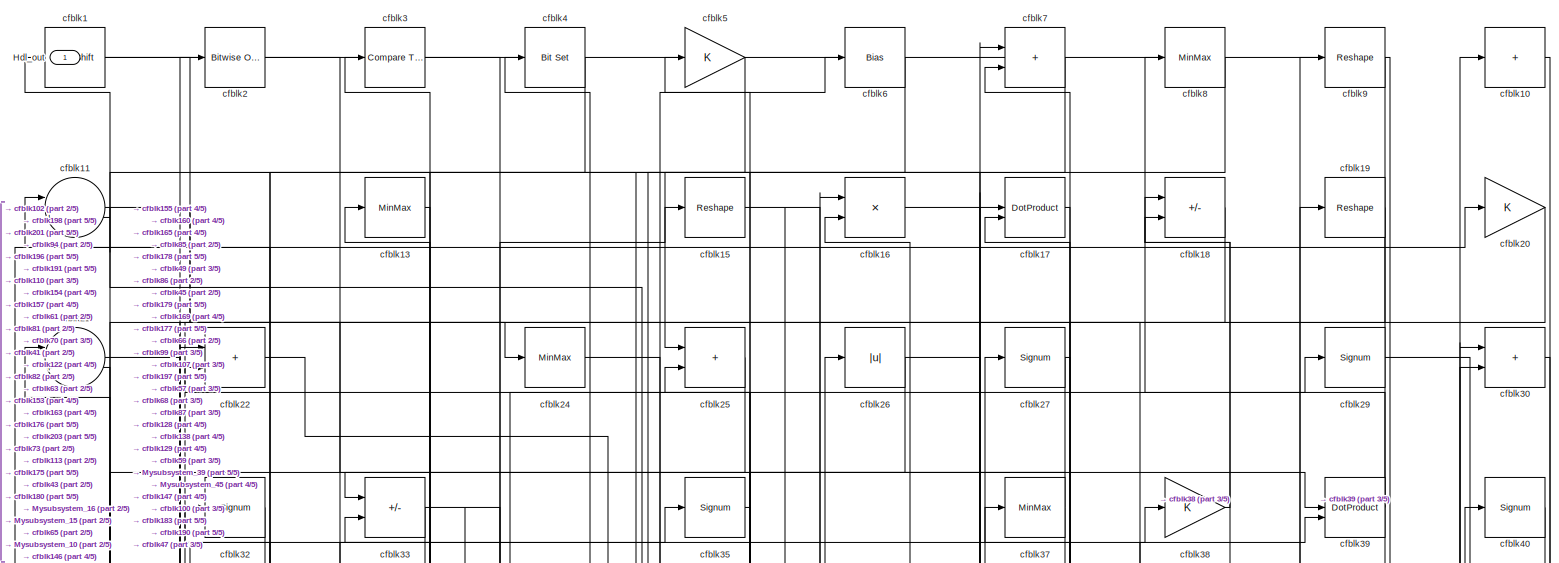
[diagram: root canvas - part 1/5, full width, top band]
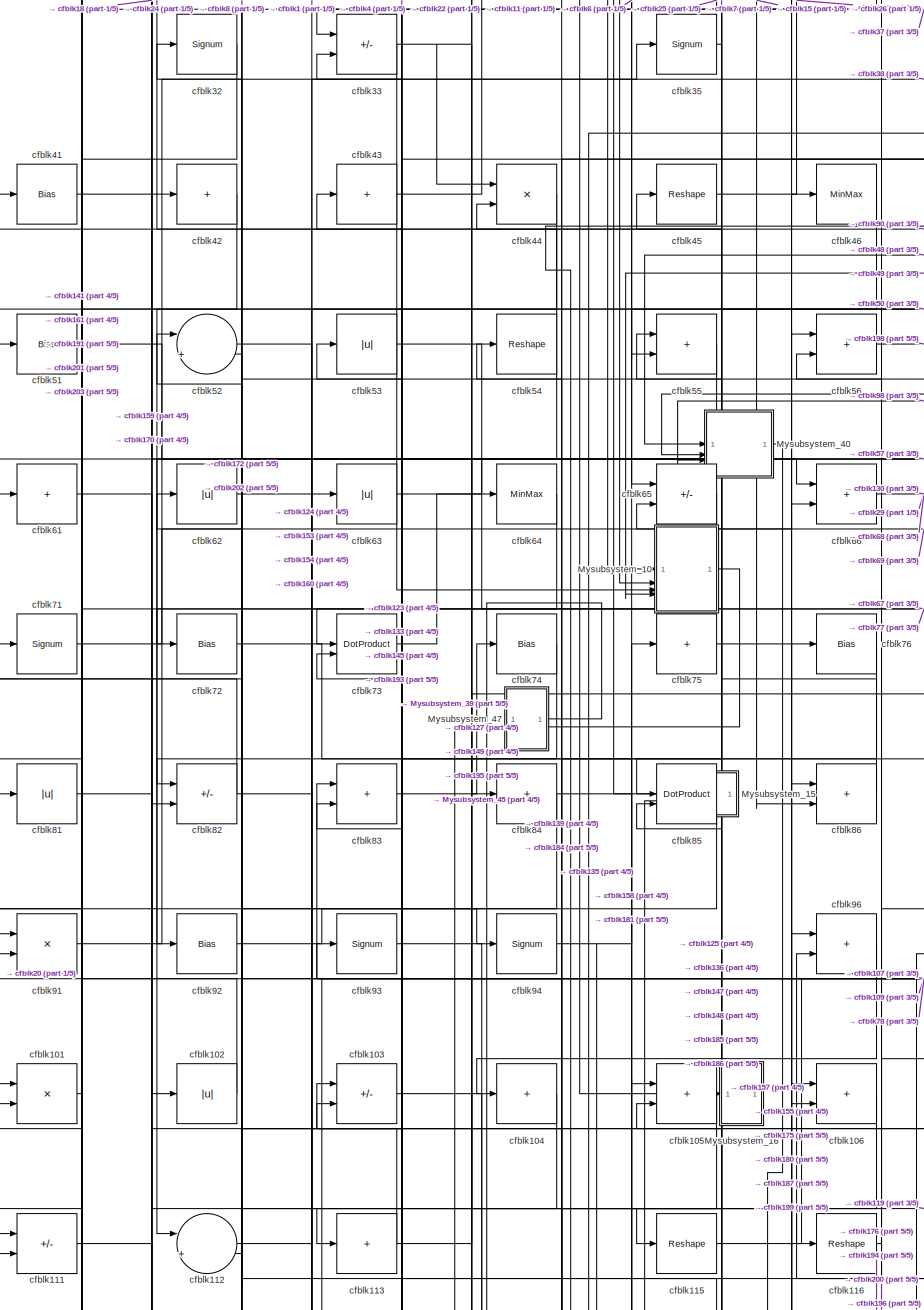
[diagram: root canvas - part 2/5, middle left region]
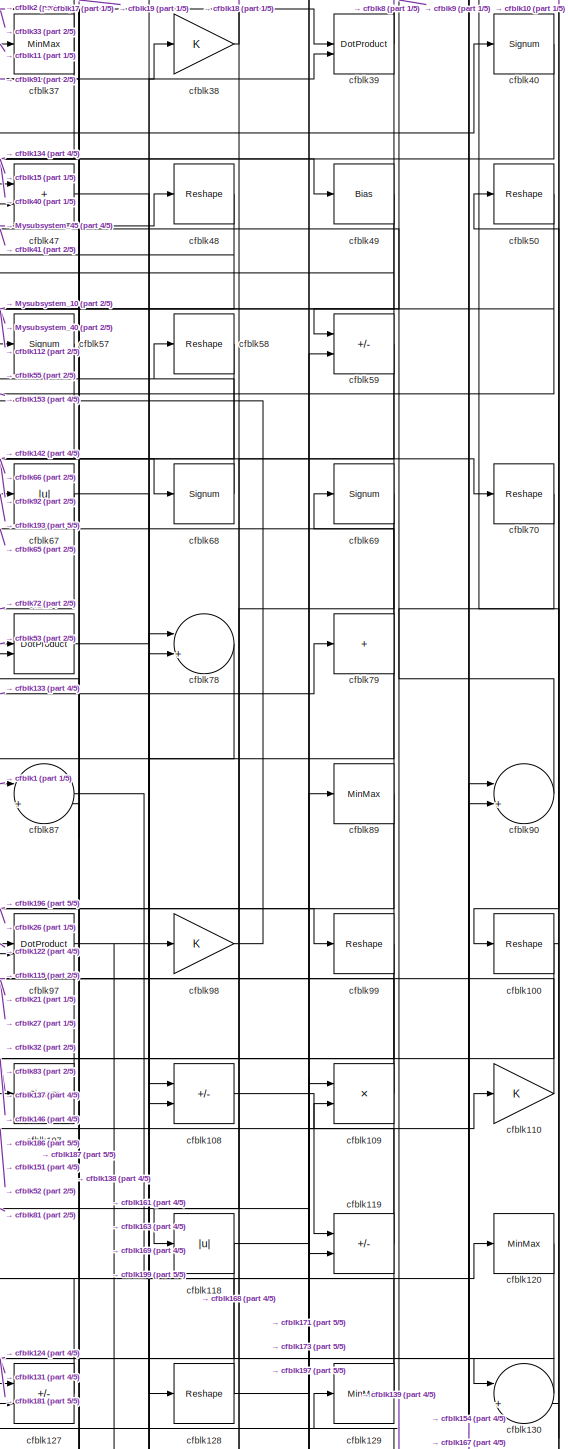
[diagram: root canvas - part 3/5, middle right region]
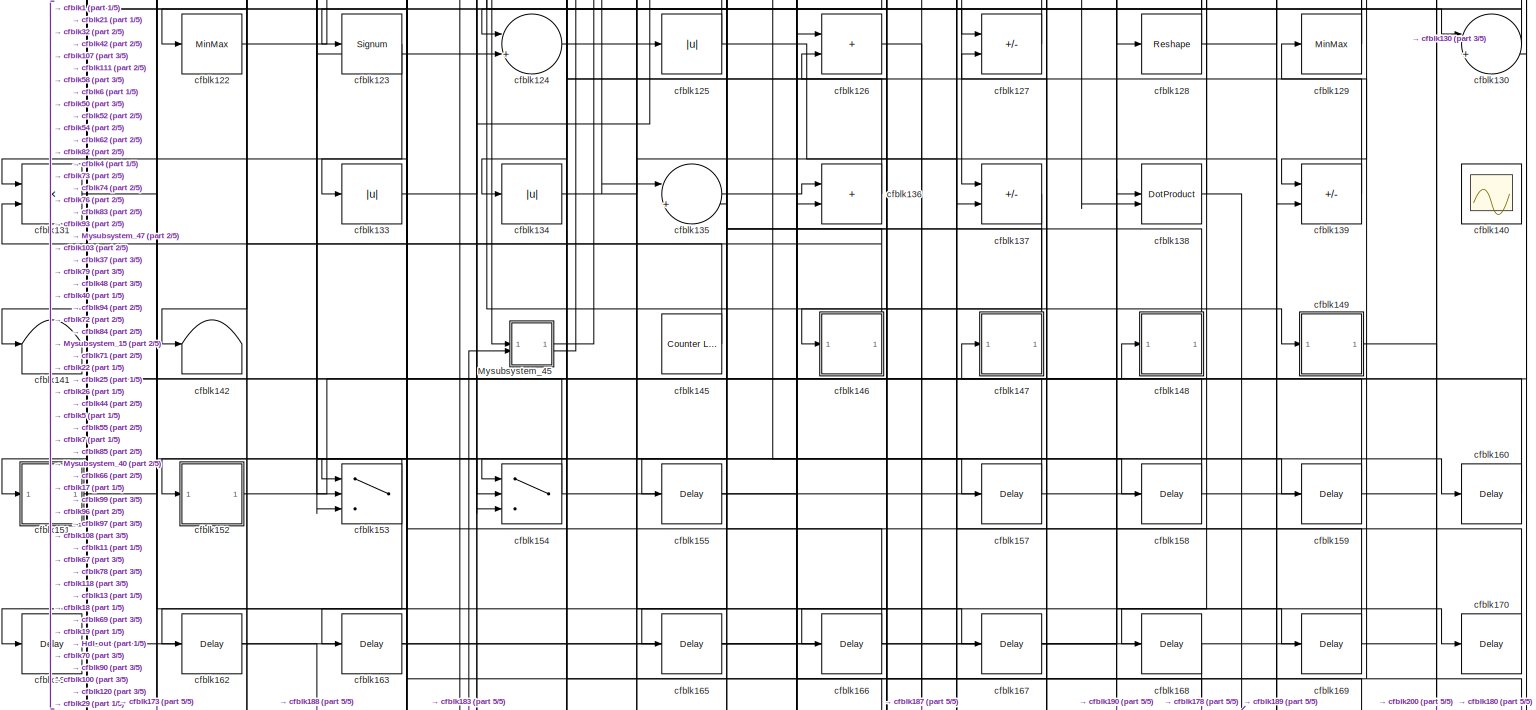
[diagram: root canvas - part 4/5, full width, bottom band]
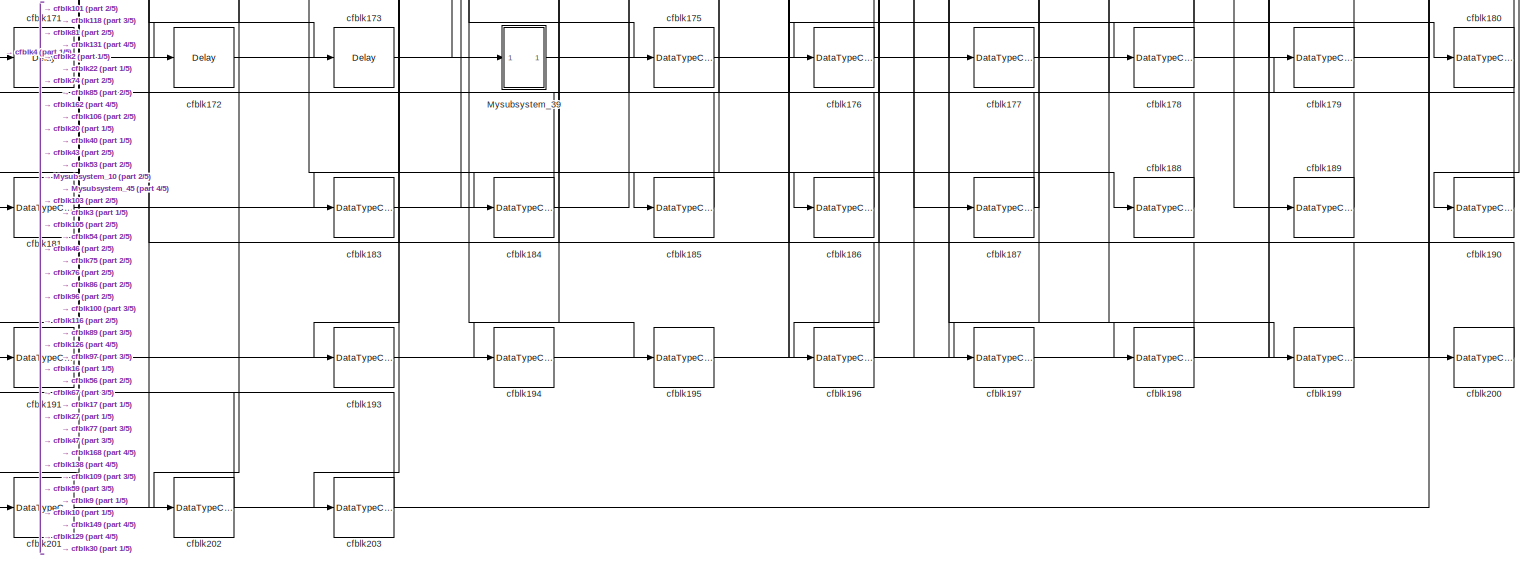
[diagram: root canvas - part 5/5, full width, bottom band]
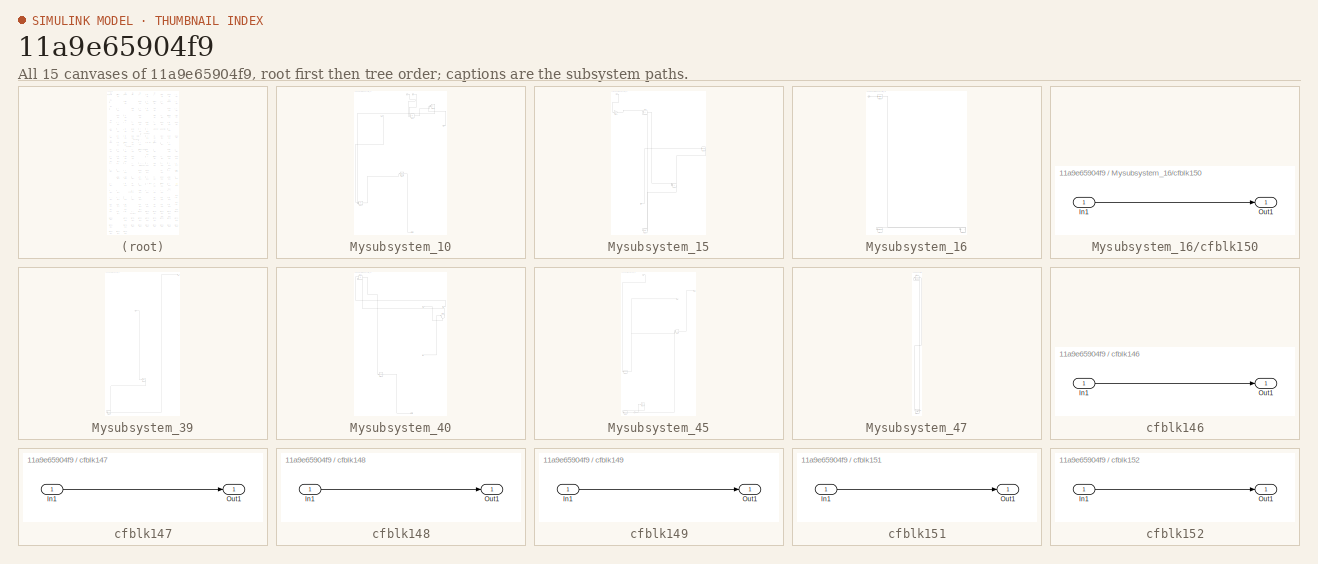
[diagram: thumbnail index - all 15 canvases of the model, root first then tree order]
MODEL slx_11a9e65904f9
KIND model
CONFIG AbsTol = auto
CONFIG EnableMultiTasking = off
CONFIG FixedStep = auto
CONFIG MaxStep = auto
CONFIG MinStep = auto
CONFIG RelTol = 1e-3
CONFIG SampleTimeConstraint = Unconstrained
CONFIG SolverName = VariableStepAuto
CONFIG StartTime = 0.0
CONFIG StopTime = 10.0
BLOCK [Outport] Hdl_out
  OutDataTypeStr = uint8
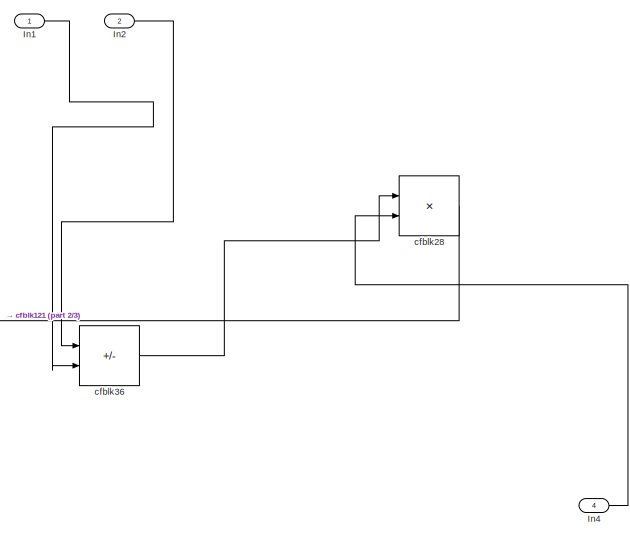
[diagram: Mysubsystem_10 - part 1/3, top right region]
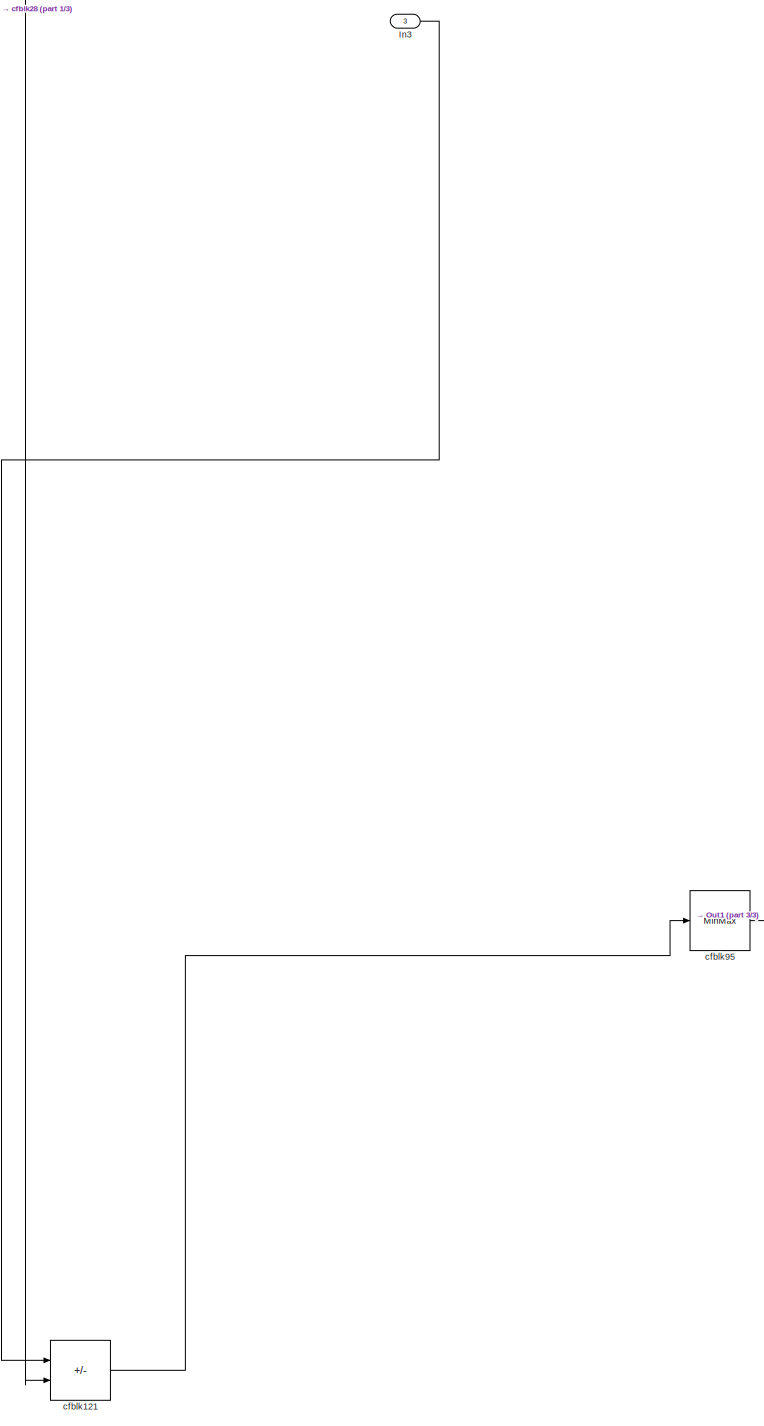
[diagram: Mysubsystem_10 - part 2/3, middle left region]
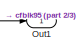
[diagram: Mysubsystem_10 - part 3/3, bottom center region]
BLOCK [SubSystem] Mysubsystem_10
  RTWFcnName = Mysubsystem_10
  RTWFcnNameOpts = User specified
  RTWFileNameOpts = Use function name
  RTWSystemCode = Reusable function
  TreatAsAtomicUnit = on
BLOCK [Inport] Mysubsystem_10/In1
BLOCK [Inport] Mysubsystem_10/In2
  Port = 2
BLOCK [Inport] Mysubsystem_10/In3
  Port = 3
BLOCK [Inport] Mysubsystem_10/In4
  Port = 4
BLOCK [Outport] Mysubsystem_10/Out1
BLOCK [Sum] Mysubsystem_10/cfblk121
  IconShape = rectangular
  Inputs = +-
BLOCK [Product] Mysubsystem_10/cfblk28
  Inputs = */
  RndMeth = Zero
  SaturateOnIntegerOverflow = on
BLOCK [Sum] Mysubsystem_10/cfblk36
  IconShape = rectangular
  Inputs = +-
BLOCK [MinMax] Mysubsystem_10/cfblk95
BLOCK [SubSystem] Mysubsystem_15
  RTWFcnName = Mysubsystem_15
  RTWFcnNameOpts = User specified
  RTWFileNameOpts = Use function name
  RTWSystemCode = Reusable function
  TreatAsAtomicUnit = on
BLOCK [Inport] Mysubsystem_15/In1
BLOCK [Inport] Mysubsystem_15/In2
  Port = 2
BLOCK [Sum] Mysubsystem_15/cfblk117
  IconShape = rectangular
  Inputs = +-
BLOCK [Delay] Mysubsystem_15/cfblk164
  InputPortMap = u0
  SampleTime = 1
BLOCK [Gain] Mysubsystem_15/cfblk31
BLOCK [Sum] Mysubsystem_15/cfblk34
  IconShape = rectangular
  Inputs = +-
BLOCK [Signum] Mysubsystem_15/cfblk80
BLOCK [SubSystem] Mysubsystem_16
  RTWFcnName = Mysubsystem_16
  RTWFcnNameOpts = User specified
  RTWFileNameOpts = Use function name
  RTWSystemCode = Reusable function
  TreatAsAtomicUnit = on
BLOCK [Inport] Mysubsystem_16/In1
BLOCK [ToWorkspace] Mysubsystem_16/cfblk143
  MaxDataPoints = inf
  SampleTime = -1
  SaveFormat = Timeseries
  VariableName = simout
BLOCK [SubSystem] Mysubsystem_16/cfblk150
  LibrarySourceBlock = hdlsllib/Ports &\nSubsystems/Subsystem
BLOCK [Inport] Mysubsystem_16/cfblk150/In1
BLOCK [Outport] Mysubsystem_16/cfblk150/Out1
BLOCK [MinMax] Mysubsystem_16/cfblk23
BLOCK [SubSystem] Mysubsystem_39
  RTWFcnName = Mysubsystem_39
  RTWFcnNameOpts = User specified
  RTWFileNameOpts = Use function name
  RTWSystemCode = Reusable function
  TreatAsAtomicUnit = on
BLOCK [Inport] Mysubsystem_39/In1
BLOCK [Outport] Mysubsystem_39/Out1
BLOCK [Delay] Mysubsystem_39/cfblk156
  InputPortMap = u0
  SampleTime = 1
BLOCK [DataTypeConversion] Mysubsystem_39/cfblk192
  OutDataTypeStr = uint8
  RndMeth = Floor
  SaturateOnIntegerOverflow = off
BLOCK [SubSystem] Mysubsystem_40
  RTWFcnName = Mysubsystem_40
  RTWFcnNameOpts = User specified
  RTWFileNameOpts = Use function name
  RTWSystemCode = Reusable function
  TreatAsAtomicUnit = on
BLOCK [Inport] Mysubsystem_40/In1
BLOCK [Inport] Mysubsystem_40/In2
  Port = 2
BLOCK [Inport] Mysubsystem_40/In3
  Port = 3
BLOCK [Outport] Mysubsystem_40/Out1
BLOCK [Reshape] Mysubsystem_40/cfblk114
BLOCK [Product] Mysubsystem_40/cfblk12
  Inputs = */
  RndMeth = Zero
  SaturateOnIntegerOverflow = on
BLOCK [Sum] Mysubsystem_40/cfblk60
  Inputs = |++
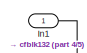
[diagram: Mysubsystem_45 - part 1/5, top left region]
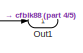
[diagram: Mysubsystem_45 - part 2/5, top right region]
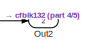
[diagram: Mysubsystem_45 - part 3/5, top right region]
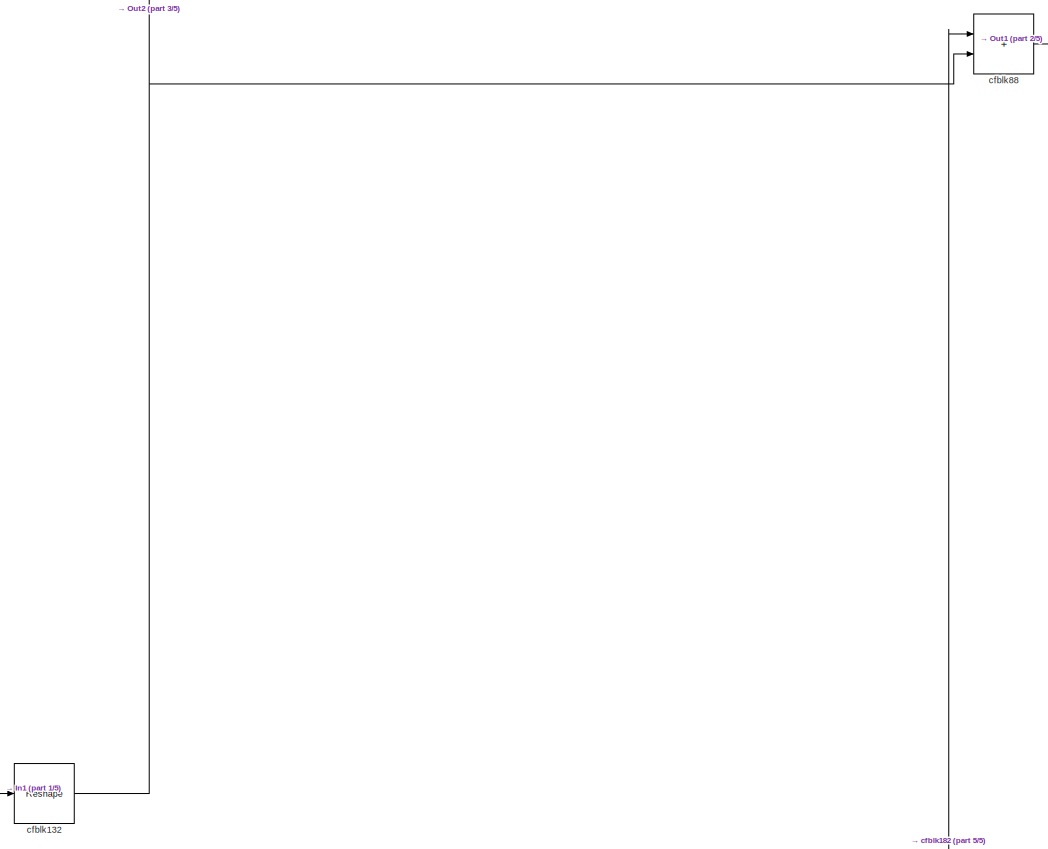
[diagram: Mysubsystem_45 - part 4/5, full width, middle band]
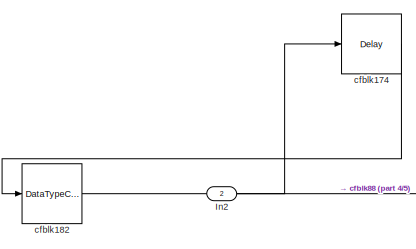
[diagram: Mysubsystem_45 - part 5/5, bottom left region]
BLOCK [SubSystem] Mysubsystem_45
  RTWFcnName = Mysubsystem_45
  RTWFcnNameOpts = User specified
  RTWFileNameOpts = Use function name
  RTWSystemCode = Reusable function
  TreatAsAtomicUnit = on
BLOCK [Inport] Mysubsystem_45/In1
BLOCK [Inport] Mysubsystem_45/In2
  Port = 2
BLOCK [Outport] Mysubsystem_45/Out1
BLOCK [Outport] Mysubsystem_45/Out2
  Port = 2
BLOCK [Reshape] Mysubsystem_45/cfblk132
BLOCK [Delay] Mysubsystem_45/cfblk174
  InputPortMap = u0
  SampleTime = 1
BLOCK [DataTypeConversion] Mysubsystem_45/cfblk182
  OutDataTypeStr = uint8
  RndMeth = Floor
  SaturateOnIntegerOverflow = off
BLOCK [Sum] Mysubsystem_45/cfblk88
  IconShape = rectangular
BLOCK [SubSystem] Mysubsystem_47
  RTWFcnName = Mysubsystem_47
  RTWFcnNameOpts = User specified
  RTWFileNameOpts = Use function name
  RTWSystemCode = Reusable function
  TreatAsAtomicUnit = on
BLOCK [Outport] Mysubsystem_47/Out1
BLOCK [Reshape] Mysubsystem_47/cfblk14
BLOCK [Ground] Mysubsystem_47/cfblk144
BLOCK [ArithShift] cfblk1
  BitShiftNumber = 8
  InputPortMap = u0
BLOCK [Sum] cfblk10
  IconShape = rectangular
  Inputs = +
  OutDataTypeStr = uint8
BLOCK [Reshape] cfblk100
BLOCK [Product] cfblk101
  Inputs = */
  OutDataTypeStr = uint8
  RndMeth = Zero
  SaturateOnIntegerOverflow = on
BLOCK [Abs] cfblk102
  OutDataTypeStr = uint8
  SaturateOnIntegerOverflow = off
BLOCK [Sum] cfblk103
  IconShape = rectangular
  Inputs = +-
  OutDataTypeStr = uint8
BLOCK [Sum] cfblk104
  IconShape = rectangular
  Inputs = +
  OutDataTypeStr = uint8
BLOCK [Sum] cfblk105
  IconShape = rectangular
  OutDataTypeStr = uint8
BLOCK [Sum] cfblk106
  IconShape = rectangular
  OutDataTypeStr = uint8
BLOCK [Signum] cfblk107
BLOCK [Sum] cfblk108
  IconShape = rectangular
  Inputs = +-
  OutDataTypeStr = uint8
BLOCK [Product] cfblk109
  Inputs = */
  OutDataTypeStr = uint8
  RndMeth = Zero
  SaturateOnIntegerOverflow = on
BLOCK [Sum] cfblk11
  Inputs = |++
  OutDataTypeStr = uint8
BLOCK [Gain] cfblk110
  OutDataTypeStr = uint8
BLOCK [Sum] cfblk111
  IconShape = rectangular
  Inputs = +-
  OutDataTypeStr = uint8
BLOCK [Sum] cfblk112
  Inputs = |++
  OutDataTypeStr = uint8
BLOCK [Sum] cfblk113
  IconShape = rectangular
  Inputs = +
  OutDataTypeStr = uint8
BLOCK [Reshape] cfblk115
BLOCK [Reshape] cfblk116
BLOCK [Abs] cfblk118
  OutDataTypeStr = uint8
  SaturateOnIntegerOverflow = off
BLOCK [Sum] cfblk119
  IconShape = rectangular
  Inputs = +-
  OutDataTypeStr = uint8
BLOCK [MinMax] cfblk120
  OutDataTypeStr = uint8
BLOCK [MinMax] cfblk122
  OutDataTypeStr = uint8
BLOCK [Signum] cfblk123
BLOCK [Sum] cfblk124
  Inputs = |++
  OutDataTypeStr = uint8
BLOCK [Abs] cfblk125
  OutDataTypeStr = uint8
  SaturateOnIntegerOverflow = off
BLOCK [Sum] cfblk126
  IconShape = rectangular
  OutDataTypeStr = uint8
BLOCK [Sum] cfblk127
  IconShape = rectangular
  Inputs = +-
  OutDataTypeStr = uint8
BLOCK [Reshape] cfblk128
BLOCK [MinMax] cfblk129
  OutDataTypeStr = uint8
BLOCK [MinMax] cfblk13
  OutDataTypeStr = uint8
BLOCK [Sum] cfblk130
  Inputs = |++
  OutDataTypeStr = uint8
BLOCK [Product] cfblk131
  Inputs = */
  OutDataTypeStr = uint8
  RndMeth = Zero
  SaturateOnIntegerOverflow = on
BLOCK [Abs] cfblk133
  OutDataTypeStr = uint8
  SaturateOnIntegerOverflow = off
BLOCK [Abs] cfblk134
  OutDataTypeStr = uint8
  SaturateOnIntegerOverflow = off
BLOCK [Sum] cfblk135
  Inputs = |++
  OutDataTypeStr = uint8
BLOCK [Sum] cfblk136
  IconShape = rectangular
  OutDataTypeStr = uint8
BLOCK [Sum] cfblk137
  IconShape = rectangular
  Inputs = +-
  OutDataTypeStr = uint8
BLOCK [DotProduct] cfblk138
  OutDataTypeStr = uint8
BLOCK [Sum] cfblk139
  IconShape = rectangular
  Inputs = +-
  OutDataTypeStr = uint8
BLOCK [Scope] cfblk140
  Floating = on
  NumInputPorts = 1
  ScopeSpecificationString = Simulink.scopes.TimeScopeBlockCfg('CurrentConfiguration', extmgr.ConfigurationSet(extmgr.Configuration('Core','General UI',true,'FigureColor',[0.156862745098039 0.156862745098039 0.156862745098039]),extmgr.Configuration('Core','Source UI',true),extmgr.Configuration('Sources','WiredSimulink',true,'DataLoggingVariableName','ScopeData1','DataLoggingSaveFormat','StructureWithTime','DataLoggingLimitDat...<+2713ch>
BLOCK [Terminator] cfblk141
BLOCK [Terminator] cfblk142
BLOCK [Reference] cfblk145  REF=hdlsllib/Sources/Counter
Limited
  SourceBlock = hdlsllib/Sources/Counter\nLimited
  SourceType = Counter Limited
BLOCK [SubSystem] cfblk146
  LibrarySourceBlock = hdlsllib/Ports &\nSubsystems/Subsystem
BLOCK [Inport] cfblk146/In1
BLOCK [Outport] cfblk146/Out1
BLOCK [SubSystem] cfblk147
  LibrarySourceBlock = hdlsllib/Ports &\nSubsystems/Subsystem
BLOCK [Inport] cfblk147/In1
BLOCK [Outport] cfblk147/Out1
BLOCK [SubSystem] cfblk148
  LibrarySourceBlock = hdlsllib/Ports &\nSubsystems/Subsystem
BLOCK [Inport] cfblk148/In1
BLOCK [Outport] cfblk148/Out1
BLOCK [SubSystem] cfblk149
  LibrarySourceBlock = hdlsllib/Ports &\nSubsystems/Subsystem
BLOCK [Inport] cfblk149/In1
BLOCK [Outport] cfblk149/Out1
BLOCK [Reshape] cfblk15
BLOCK [SubSystem] cfblk151
  LibrarySourceBlock = hdlsllib/Ports &\nSubsystems/Subsystem
BLOCK [Inport] cfblk151/In1
BLOCK [Outport] cfblk151/Out1
BLOCK [SubSystem] cfblk152
  LibrarySourceBlock = hdlsllib/Ports &\nSubsystems/Subsystem
BLOCK [Inport] cfblk152/In1
BLOCK [Outport] cfblk152/Out1
BLOCK [Switch] cfblk153
  InputSameDT = off
  OutDataTypeStr = uint8
  SaturateOnIntegerOverflow = off
BLOCK [Switch] cfblk154
  InputSameDT = off
  OutDataTypeStr = uint8
  SaturateOnIntegerOverflow = off
BLOCK [Delay] cfblk155
  InputPortMap = u0
  SampleTime = 1
BLOCK [Delay] cfblk157
  InputPortMap = u0
  SampleTime = 1
BLOCK [Delay] cfblk158
  InputPortMap = u0
  SampleTime = 1
BLOCK [Delay] cfblk159
  InputPortMap = u0
  SampleTime = 1
BLOCK [Product] cfblk16
  Inputs = */
  OutDataTypeStr = uint8
  RndMeth = Zero
  SaturateOnIntegerOverflow = on
BLOCK [Delay] cfblk160
  InputPortMap = u0
  SampleTime = 1
BLOCK [Delay] cfblk161
  InputPortMap = u0
  SampleTime = 1
BLOCK [Delay] cfblk162
  InputPortMap = u0
  SampleTime = 1
BLOCK [Delay] cfblk163
  InputPortMap = u0
  SampleTime = 1
BLOCK [Delay] cfblk165
  InputPortMap = u0
  SampleTime = 1
BLOCK [Delay] cfblk166
  InputPortMap = u0
  SampleTime = 1
BLOCK [Delay] cfblk167
  InputPortMap = u0
  SampleTime = 1
BLOCK [Delay] cfblk168
  InputPortMap = u0
  SampleTime = 1
BLOCK [Delay] cfblk169
  InputPortMap = u0
  SampleTime = 1
BLOCK [DotProduct] cfblk17
  OutDataTypeStr = uint8
BLOCK [Delay] cfblk170
  InputPortMap = u0
  SampleTime = 1
BLOCK [Delay] cfblk171
  InputPortMap = u0
  SampleTime = 1
BLOCK [Delay] cfblk172
  InputPortMap = u0
  SampleTime = 1
BLOCK [Delay] cfblk173
  InputPortMap = u0
  SampleTime = 1
BLOCK [DataTypeConversion] cfblk175
  OutDataTypeStr = uint8
  RndMeth = Floor
  SaturateOnIntegerOverflow = off
BLOCK [DataTypeConversion] cfblk176
  OutDataTypeStr = uint8
  RndMeth = Floor
  SaturateOnIntegerOverflow = off
BLOCK [DataTypeConversion] cfblk177
  OutDataTypeStr = uint8
  RndMeth = Floor
  SaturateOnIntegerOverflow = off
BLOCK [DataTypeConversion] cfblk178
  OutDataTypeStr = uint8
  RndMeth = Floor
  SaturateOnIntegerOverflow = off
BLOCK [DataTypeConversion] cfblk179
  OutDataTypeStr = uint8
  RndMeth = Floor
  SaturateOnIntegerOverflow = off
BLOCK [Sum] cfblk18
  IconShape = rectangular
  Inputs = +-
  OutDataTypeStr = uint8
BLOCK [DataTypeConversion] cfblk180
  OutDataTypeStr = uint8
  RndMeth = Floor
  SaturateOnIntegerOverflow = off
BLOCK [DataTypeConversion] cfblk181
  OutDataTypeStr = uint8
  RndMeth = Floor
  SaturateOnIntegerOverflow = off
BLOCK [DataTypeConversion] cfblk183
  OutDataTypeStr = uint8
  RndMeth = Floor
  SaturateOnIntegerOverflow = off
BLOCK [DataTypeConversion] cfblk184
  OutDataTypeStr = uint8
  RndMeth = Floor
  SaturateOnIntegerOverflow = off
BLOCK [DataTypeConversion] cfblk185
  OutDataTypeStr = uint8
  RndMeth = Floor
  SaturateOnIntegerOverflow = off
BLOCK [DataTypeConversion] cfblk186
  OutDataTypeStr = uint8
  RndMeth = Floor
  SaturateOnIntegerOverflow = off
BLOCK [DataTypeConversion] cfblk187
  OutDataTypeStr = uint8
  RndMeth = Floor
  SaturateOnIntegerOverflow = off
BLOCK [DataTypeConversion] cfblk188
  OutDataTypeStr = uint8
  RndMeth = Floor
  SaturateOnIntegerOverflow = off
BLOCK [DataTypeConversion] cfblk189
  OutDataTypeStr = uint8
  RndMeth = Floor
  SaturateOnIntegerOverflow = off
BLOCK [Reshape] cfblk19
BLOCK [DataTypeConversion] cfblk190
  OutDataTypeStr = uint8
  RndMeth = Floor
  SaturateOnIntegerOverflow = off
BLOCK [DataTypeConversion] cfblk191
  OutDataTypeStr = uint8
  RndMeth = Floor
  SaturateOnIntegerOverflow = off
BLOCK [DataTypeConversion] cfblk193
  OutDataTypeStr = uint8
  RndMeth = Floor
  SaturateOnIntegerOverflow = off
BLOCK [DataTypeConversion] cfblk194
  OutDataTypeStr = uint8
  RndMeth = Floor
  SaturateOnIntegerOverflow = off
BLOCK [DataTypeConversion] cfblk195
  OutDataTypeStr = uint8
  RndMeth = Floor
  SaturateOnIntegerOverflow = off
BLOCK [DataTypeConversion] cfblk196
  OutDataTypeStr = uint8
  RndMeth = Floor
  SaturateOnIntegerOverflow = off
BLOCK [DataTypeConversion] cfblk197
  OutDataTypeStr = uint8
  RndMeth = Floor
  SaturateOnIntegerOverflow = off
BLOCK [DataTypeConversion] cfblk198
  OutDataTypeStr = uint8
  RndMeth = Floor
  SaturateOnIntegerOverflow = off
BLOCK [DataTypeConversion] cfblk199
  OutDataTypeStr = uint8
  RndMeth = Floor
  SaturateOnIntegerOverflow = off
BLOCK [Reference] cfblk2  REF=simulink/Logic and Bit
Operations/Bitwise
Operator
  LibrarySourceBlock = hdlsllib/Logic and Bit\nOperations/Bitwise\nOperator
  SourceBlock = simulink/Logic and Bit\nOperations/Bitwise\nOperator
  SourceType = Bitwise Operator
BLOCK [Gain] cfblk20
  OutDataTypeStr = uint8
BLOCK [DataTypeConversion] cfblk200
  OutDataTypeStr = uint8
  RndMeth = Floor
  SaturateOnIntegerOverflow = off
BLOCK [DataTypeConversion] cfblk201
  OutDataTypeStr = uint8
  RndMeth = Floor
  SaturateOnIntegerOverflow = off
BLOCK [DataTypeConversion] cfblk202
  OutDataTypeStr = uint8
  RndMeth = Floor
  SaturateOnIntegerOverflow = off
BLOCK [DataTypeConversion] cfblk203
  OutDataTypeStr = uint8
  RndMeth = Floor
  SaturateOnIntegerOverflow = off
BLOCK [Sum] cfblk21
  Inputs = |++
  OutDataTypeStr = uint8
BLOCK [Sum] cfblk22
  IconShape = rectangular
  OutDataTypeStr = uint8
BLOCK [MinMax] cfblk24
  OutDataTypeStr = uint8
BLOCK [Sum] cfblk25
  IconShape = rectangular
  OutDataTypeStr = uint8
BLOCK [Abs] cfblk26
  OutDataTypeStr = uint8
  SaturateOnIntegerOverflow = off
BLOCK [Signum] cfblk27
BLOCK [Signum] cfblk29
BLOCK [Reference] cfblk3  REF=hdlsllib/Logic and Bit
Operations/Compare
To Zero
  SourceBlock = hdlsllib/Logic and Bit\nOperations/Compare\nTo Zero
  SourceType = Compare To Zero
BLOCK [Sum] cfblk30
  IconShape = rectangular
  OutDataTypeStr = uint8
BLOCK [Signum] cfblk32
BLOCK [Sum] cfblk33
  IconShape = rectangular
  Inputs = +-
  OutDataTypeStr = uint8
BLOCK [Signum] cfblk35
BLOCK [MinMax] cfblk37
  OutDataTypeStr = uint8
BLOCK [Gain] cfblk38
  OutDataTypeStr = uint8
BLOCK [DotProduct] cfblk39
  OutDataTypeStr = uint8
BLOCK [Reference] cfblk4  REF=simulink/Logic and Bit
Operations/Bit Set
  LibrarySourceBlock = hdlsllib/Logic and Bit\nOperations/Bit Set
  SourceBlock = simulink/Logic and Bit\nOperations/Bit Set
  SourceType = Bit Set
BLOCK [Signum] cfblk40
BLOCK [Bias] cfblk41
  Bias = 0.0
  SaturateOnIntegerOverflow = off
BLOCK [Sum] cfblk42
  IconShape = rectangular
  Inputs = +
  OutDataTypeStr = uint8
BLOCK [Sum] cfblk43
  IconShape = rectangular
  Inputs = +
  OutDataTypeStr = uint8
BLOCK [Product] cfblk44
  Inputs = */
  OutDataTypeStr = uint8
  RndMeth = Zero
  SaturateOnIntegerOverflow = on
BLOCK [Reshape] cfblk45
BLOCK [MinMax] cfblk46
  OutDataTypeStr = uint8
BLOCK [Sum] cfblk47
  IconShape = rectangular
  OutDataTypeStr = uint8
BLOCK [Reshape] cfblk48
BLOCK [Bias] cfblk49
  Bias = 0.0
  SaturateOnIntegerOverflow = off
BLOCK [Gain] cfblk5
  OutDataTypeStr = uint8
BLOCK [Reshape] cfblk50
BLOCK [Bias] cfblk51
  Bias = 0.0
  SaturateOnIntegerOverflow = off
BLOCK [Sum] cfblk52
  Inputs = |++
  OutDataTypeStr = uint8
BLOCK [Abs] cfblk53
  OutDataTypeStr = uint8
  SaturateOnIntegerOverflow = off
BLOCK [Reshape] cfblk54
BLOCK [Sum] cfblk55
  IconShape = rectangular
  OutDataTypeStr = uint8
BLOCK [Sum] cfblk56
  IconShape = rectangular
  OutDataTypeStr = uint8
BLOCK [Signum] cfblk57
BLOCK [Reshape] cfblk58
BLOCK [Sum] cfblk59
  IconShape = rectangular
  Inputs = +-
  OutDataTypeStr = uint8
BLOCK [Bias] cfblk6
  Bias = 0.0
  SaturateOnIntegerOverflow = off
BLOCK [Sum] cfblk61
  IconShape = rectangular
  Inputs = +
  OutDataTypeStr = uint8
BLOCK [Abs] cfblk62
  OutDataTypeStr = uint8
  SaturateOnIntegerOverflow = off
BLOCK [Abs] cfblk63
  OutDataTypeStr = uint8
  SaturateOnIntegerOverflow = off
BLOCK [MinMax] cfblk64
  OutDataTypeStr = uint8
BLOCK [Sum] cfblk65
  IconShape = rectangular
  Inputs = +-
  OutDataTypeStr = uint8
BLOCK [Sum] cfblk66
  IconShape = rectangular
  OutDataTypeStr = uint8
BLOCK [Abs] cfblk67
  OutDataTypeStr = uint8
  SaturateOnIntegerOverflow = off
BLOCK [Signum] cfblk68
BLOCK [Signum] cfblk69
BLOCK [Sum] cfblk7
  IconShape = rectangular
  OutDataTypeStr = uint8
BLOCK [Reshape] cfblk70
BLOCK [Signum] cfblk71
BLOCK [Bias] cfblk72
  Bias = 0.0
  SaturateOnIntegerOverflow = off
BLOCK [DotProduct] cfblk73
  OutDataTypeStr = uint8
BLOCK [Bias] cfblk74
  Bias = 0.0
  SaturateOnIntegerOverflow = off
BLOCK [Sum] cfblk75
  IconShape = rectangular
  Inputs = +
  OutDataTypeStr = uint8
BLOCK [Bias] cfblk76
  Bias = 0.0
  SaturateOnIntegerOverflow = off
BLOCK [DotProduct] cfblk77
  OutDataTypeStr = uint8
BLOCK [Sum] cfblk78
  Inputs = |++
  OutDataTypeStr = uint8
BLOCK [Sum] cfblk79
  IconShape = rectangular
  Inputs = +
  OutDataTypeStr = uint8
BLOCK [MinMax] cfblk8
  OutDataTypeStr = uint8
BLOCK [Abs] cfblk81
  OutDataTypeStr = uint8
  SaturateOnIntegerOverflow = off
BLOCK [Sum] cfblk82
  IconShape = rectangular
  Inputs = +-
  OutDataTypeStr = uint8
BLOCK [Sum] cfblk83
  IconShape = rectangular
  OutDataTypeStr = uint8
BLOCK [Sum] cfblk84
  IconShape = rectangular
  Inputs = +
  OutDataTypeStr = uint8
BLOCK [DotProduct] cfblk85
  OutDataTypeStr = uint8
BLOCK [Sum] cfblk86
  IconShape = rectangular
  OutDataTypeStr = uint8
BLOCK [Sum] cfblk87
  Inputs = |++
  OutDataTypeStr = uint8
BLOCK [MinMax] cfblk89
  OutDataTypeStr = uint8
BLOCK [Reshape] cfblk9
BLOCK [Sum] cfblk90
  Inputs = |++
  OutDataTypeStr = uint8
BLOCK [Product] cfblk91
  Inputs = */
  OutDataTypeStr = uint8
  RndMeth = Zero
  SaturateOnIntegerOverflow = on
BLOCK [Bias] cfblk92
  Bias = 0.0
  SaturateOnIntegerOverflow = off
BLOCK [Signum] cfblk93
BLOCK [Signum] cfblk94
BLOCK [Sum] cfblk96
  IconShape = rectangular
  OutDataTypeStr = uint8
BLOCK [DotProduct] cfblk97
  OutDataTypeStr = uint8
BLOCK [Gain] cfblk98
  OutDataTypeStr = uint8
BLOCK [Reshape] cfblk99
LINE Mysubsystem_10/In1:1 -> Mysubsystem_10/cfblk36:2
LINE Mysubsystem_10/In2:1 -> Mysubsystem_10/cfblk36:1
LINE Mysubsystem_10/In3:1 -> Mysubsystem_10/cfblk121:1
LINE Mysubsystem_10/In4:1 -> Mysubsystem_10/cfblk28:2
LINE Mysubsystem_10/cfblk121:1 -> Mysubsystem_10/cfblk95:1
LINE Mysubsystem_10/cfblk28:1 -> Mysubsystem_10/cfblk121:2
LINE Mysubsystem_10/cfblk36:1 -> Mysubsystem_10/cfblk28:1
LINE Mysubsystem_10/cfblk95:1 -> Mysubsystem_10/Out1:1
LINE Mysubsystem_10:1 -> Mysubsystem_39:1
LINE Mysubsystem_15/In1:1 -> Mysubsystem_15/cfblk31:1
LINE Mysubsystem_15/In2:1 -> Mysubsystem_15/cfblk80:1
LINE Mysubsystem_15/cfblk117:1 -> Mysubsystem_15/cfblk164:1
LINE Mysubsystem_15/cfblk164:1 -> Mysubsystem_15/cfblk34:2
LINE Mysubsystem_15/cfblk31:1 -> Mysubsystem_15/cfblk34:1
LINE Mysubsystem_15/cfblk34:1 -> Mysubsystem_15/cfblk117:2
LINE Mysubsystem_15/cfblk80:1 -> Mysubsystem_15/cfblk117:1
LINE Mysubsystem_16/In1:1 -> Mysubsystem_16/cfblk23:1
LINE Mysubsystem_16/cfblk150/In1:1 -> Mysubsystem_16/cfblk150/Out1:1
LINE Mysubsystem_16/cfblk150:1 -> Mysubsystem_16/cfblk143:1
LINE Mysubsystem_16/cfblk23:1 -> Mysubsystem_16/cfblk150:1
LINE Mysubsystem_39/In1:1 -> Mysubsystem_39/cfblk156:1
LINE Mysubsystem_39/cfblk156:1 -> Mysubsystem_39/cfblk192:1
LINE Mysubsystem_39/cfblk192:1 -> Mysubsystem_39/Out1:1
LINE Mysubsystem_39:1 -> cfblk30:2
LINE Mysubsystem_40/In1:1 -> Mysubsystem_40/cfblk60:2
LINE Mysubsystem_40/In2:1 -> Mysubsystem_40/cfblk12:1
LINE Mysubsystem_40/In3:1 -> Mysubsystem_40/cfblk60:1
LINE Mysubsystem_40/cfblk114:1 -> Mysubsystem_40/Out1:1
LINE Mysubsystem_40/cfblk12:1 -> Mysubsystem_40/cfblk114:1
LINE Mysubsystem_40/cfblk60:1 -> Mysubsystem_40/cfblk12:2
LINE Mysubsystem_40:1 -> cfblk157:1
LINE Mysubsystem_45/In1:1 -> Mysubsystem_45/cfblk132:1
LINE Mysubsystem_45/In2:1 -> Mysubsystem_45/cfblk174:1
NET Mysubsystem_45/cfblk132:1 -> Mysubsystem_45/Out2:1, Mysubsystem_45/cfblk88:2
LINE Mysubsystem_45/cfblk174:1 -> Mysubsystem_45/cfblk182:1
LINE Mysubsystem_45/cfblk182:1 -> Mysubsystem_45/cfblk88:1
LINE Mysubsystem_45/cfblk88:1 -> Mysubsystem_45/Out1:1
LINE Mysubsystem_45:1 -> cfblk40:1
LINE Mysubsystem_45:2 -> cfblk48:1
LINE Mysubsystem_47/cfblk144:1 -> Mysubsystem_47/cfblk14:1
LINE Mysubsystem_47/cfblk14:1 -> Mysubsystem_47/Out1:1
LINE Mysubsystem_47:1 -> Mysubsystem_45:1
NET cfblk100:1 -> cfblk130:2, cfblk146:1, cfblk186:1, cfblk50:1
LINE cfblk101:1 -> cfblk201:1
LINE cfblk102:1 -> cfblk20:1
NET cfblk103:1 -> cfblk127:1, cfblk195:1
LINE cfblk104:1 -> cfblk112:2
LINE cfblk105:1 -> cfblk184:1
LINE cfblk106:1 -> cfblk193:1
NET cfblk107:1 -> cfblk27:1, cfblk32:1
LINE cfblk108:1 -> cfblk119:1
LINE cfblk109:1 -> cfblk83:1
LINE cfblk10:1 -> cfblk100:1
LINE cfblk110:1 -> cfblk21:1
LINE cfblk111:1 -> cfblk159:1
LINE cfblk112:1 -> cfblk35:1
NET cfblk113:1 -> cfblk15:1, cfblk52:1
LINE cfblk115:1 -> cfblk78:2
NET cfblk116:1 -> cfblk176:1, cfblk194:1
NET cfblk118:1 -> cfblk110:1, cfblk154:3, cfblk181:1
NET cfblk119:1 -> cfblk109:2, cfblk52:2
NET cfblk11:1 -> Mysubsystem_15:1, cfblk128:1
LINE cfblk120:1 -> cfblk131:1
LINE cfblk122:1 -> cfblk97:1
LINE cfblk123:1 -> cfblk151:1
LINE cfblk124:1 -> cfblk167:1
NET cfblk125:1 -> cfblk139:2, cfblk71:1
LINE cfblk126:1 -> cfblk187:1
LINE cfblk127:1 -> cfblk96:2
NET cfblk128:1 -> cfblk13:1, cfblk19:1
NET cfblk129:1 -> Hdl_out:1, cfblk7:2
LINE cfblk130:1 -> cfblk124:1
LINE cfblk131:1 -> cfblk173:1
NET cfblk133:1 -> Mysubsystem_15:2, cfblk79:1
LINE cfblk134:1 -> cfblk137:2
LINE cfblk135:1 -> cfblk136:1
NET cfblk136:1 -> cfblk103:1, cfblk85:2
LINE cfblk137:1 -> cfblk166:1
NET cfblk138:1 -> cfblk189:1, cfblk18:1
LINE cfblk139:1 -> cfblk93:1
LINE cfblk13:1 -> cfblk163:1
NET cfblk145:1 -> cfblk62:1, cfblk73:2
LINE cfblk146/In1:1 -> cfblk146/Out1:1
NET cfblk146:1 -> cfblk131:2, cfblk22:2
LINE cfblk147/In1:1 -> cfblk147/Out1:1
NET cfblk147:1 -> cfblk44:2, cfblk5:1
LINE cfblk148/In1:1 -> cfblk148/Out1:1
LINE cfblk148:1 -> cfblk55:1
LINE cfblk149/In1:1 -> cfblk149/Out1:1
LINE cfblk149:1 -> cfblk200:1
LINE cfblk151/In1:1 -> cfblk151/Out1:1
LINE cfblk151:1 -> cfblk107:1
LINE cfblk152/In1:1 -> cfblk152/Out1:1
LINE cfblk152:1 -> cfblk148:1
NET cfblk153:1 -> cfblk152:1, cfblk162:1
NET cfblk154:1 -> cfblk21:2, cfblk90:2
LINE cfblk155:1 -> cfblk66:2
LINE cfblk157:1 -> cfblk1:1
LINE cfblk158:1 -> cfblk127:2
LINE cfblk159:1 -> cfblk103:2
NET cfblk15:1 -> cfblk49:1, cfblk86:2
LINE cfblk160:1 -> cfblk25:2
LINE cfblk161:1 -> cfblk108:1
LINE cfblk162:1 -> cfblk188:1
LINE cfblk163:1 -> cfblk78:1
LINE cfblk165:1 -> cfblk136:2
LINE cfblk166:1 -> cfblk135:2
LINE cfblk167:1 -> cfblk90:1
LINE cfblk168:1 -> cfblk178:1
LINE cfblk169:1 -> cfblk17:1
LINE cfblk16:1 -> cfblk177:1
LINE cfblk170:1 -> cfblk83:2
LINE cfblk171:1 -> cfblk59:2
LINE cfblk172:1 -> cfblk96:1
LINE cfblk173:1 -> cfblk109:1
LINE cfblk175:1 -> cfblk76:1
LINE cfblk176:1 -> cfblk3:1
LINE cfblk177:1 -> cfblk17:2
LINE cfblk178:1 -> cfblk16:1
LINE cfblk179:1 -> cfblk16:2
LINE cfblk17:1 -> cfblk57:1
NET cfblk180:1 -> cfblk129:1, cfblk171:1, cfblk4:1
LINE cfblk181:1 -> cfblk75:1
LINE cfblk183:1 -> Mysubsystem_45:2
LINE cfblk184:1 -> cfblk53:1
LINE cfblk185:1 -> cfblk105:1
LINE cfblk186:1 -> cfblk105:2
NET cfblk187:1 -> cfblk77:2, cfblk86:1
LINE cfblk188:1 -> cfblk126:1
LINE cfblk189:1 -> cfblk126:2
LINE cfblk18:1 -> cfblk82:2
NET cfblk190:1 -> cfblk138:1, cfblk179:1
LINE cfblk191:1 -> cfblk30:1
LINE cfblk193:1 -> cfblk67:1
LINE cfblk194:1 -> cfblk106:1
LINE cfblk195:1 -> cfblk106:2
NET cfblk196:1 -> cfblk43:1, cfblk97:2, cfblk9:1
LINE cfblk197:1 -> cfblk89:1
NET cfblk198:1 -> cfblk22:1, cfblk54:1
LINE cfblk199:1 -> cfblk56:1
LINE cfblk19:1 -> cfblk47:1
NET cfblk1:1 -> cfblk63:1, cfblk87:1
LINE cfblk200:1 -> cfblk56:2
NET cfblk201:1 -> cfblk10:1, cfblk2:1
LINE cfblk202:1 -> cfblk101:1
LINE cfblk203:1 -> cfblk101:2
NET cfblk20:1 -> cfblk203:1, cfblk81:1
LINE cfblk21:1 -> cfblk70:1
LINE cfblk22:1 -> Mysubsystem_16:1
LINE cfblk24:1 -> cfblk65:1
LINE cfblk25:1 -> cfblk61:1
NET cfblk26:1 -> cfblk165:1, cfblk99:1
NET cfblk27:1 -> cfblk197:1, cfblk85:1, cfblk87:2
LINE cfblk29:1 -> cfblk147:1
LINE cfblk2:1 -> cfblk39:1
LINE cfblk30:1 -> cfblk190:1
LINE cfblk32:1 -> cfblk141:1
NET cfblk33:1 -> Mysubsystem_10:3, cfblk116:1, cfblk44:1
LINE cfblk35:1 -> cfblk115:1
NET cfblk37:1 -> cfblk134:1, cfblk33:1
LINE cfblk38:1 -> cfblk18:2
LINE cfblk39:1 -> cfblk8:1
LINE cfblk3:1 -> cfblk175:1
NET cfblk40:1 -> cfblk183:1, cfblk47:2
LINE cfblk41:1 -> cfblk24:1
LINE cfblk42:1 -> cfblk161:1
LINE cfblk43:1 -> cfblk7:1
LINE cfblk44:1 -> cfblk91:2
LINE cfblk45:1 -> cfblk26:1
LINE cfblk46:1 -> cfblk185:1
LINE cfblk47:1 -> cfblk199:1
NET cfblk48:1 -> Mysubsystem_40:1, cfblk112:1
NET cfblk49:1 -> Mysubsystem_10:4, cfblk55:2
NET cfblk4:1 -> cfblk153:1, cfblk73:1
NET cfblk50:1 -> Mysubsystem_40:2, cfblk153:3
LINE cfblk51:1 -> cfblk84:1
LINE cfblk52:1 -> cfblk124:2
LINE cfblk53:1 -> cfblk77:1
NET cfblk54:1 -> cfblk153:2, cfblk42:1
LINE cfblk55:1 -> cfblk91:1
LINE cfblk56:1 -> cfblk198:1
LINE cfblk57:1 -> cfblk92:1
LINE cfblk58:1 -> cfblk142:1
LINE cfblk59:1 -> cfblk118:1
LINE cfblk5:1 -> cfblk25:1
LINE cfblk61:1 -> cfblk102:1
LINE cfblk62:1 -> cfblk154:2
LINE cfblk63:1 -> cfblk66:1
LINE cfblk64:1 -> cfblk111:1
LINE cfblk65:1 -> cfblk113:1
NET cfblk66:1 -> cfblk130:1, cfblk29:1, cfblk68:1
NET cfblk67:1 -> cfblk169:1, cfblk72:1
NET cfblk68:1 -> cfblk11:1, cfblk37:1, cfblk58:1
NET cfblk69:1 -> cfblk168:1, cfblk65:2
NET cfblk6:1 -> Mysubsystem_10:1, cfblk122:1
LINE cfblk70:1 -> cfblk139:1
NET cfblk71:1 -> cfblk170:1, cfblk46:1
LINE cfblk72:1 -> cfblk125:1
NET cfblk73:1 -> cfblk33:2, cfblk64:1
NET cfblk74:1 -> cfblk123:1, cfblk202:1
LINE cfblk75:1 -> cfblk180:1
LINE cfblk76:1 -> cfblk133:1
LINE cfblk77:1 -> cfblk39:2
LINE cfblk78:1 -> cfblk108:2
NET cfblk79:1 -> cfblk154:1, cfblk69:1
NET cfblk7:1 -> Mysubsystem_10:2, cfblk155:1
NET cfblk81:1 -> cfblk119:2, cfblk191:1
NET cfblk82:1 -> cfblk160:1, cfblk51:1
LINE cfblk83:1 -> cfblk74:1
NET cfblk84:1 -> cfblk111:2, cfblk158:1
LINE cfblk85:1 -> cfblk172:1
LINE cfblk86:1 -> cfblk45:1
LINE cfblk87:1 -> cfblk120:1
LINE cfblk89:1 -> cfblk196:1
NET cfblk8:1 -> cfblk11:2, cfblk82:1
LINE cfblk90:1 -> cfblk41:1
LINE cfblk91:1 -> cfblk38:1
LINE cfblk92:1 -> cfblk94:1
LINE cfblk93:1 -> cfblk149:1
NET cfblk94:1 -> cfblk135:1, cfblk6:1
LINE cfblk96:1 -> cfblk104:1
NET cfblk97:1 -> cfblk138:2, cfblk98:1
LINE cfblk98:1 -> Mysubsystem_40:3
LINE cfblk99:1 -> cfblk137:1
LINE cfblk9:1 -> cfblk59:1
note: NET lines group one-source signal fan-out (src -> all destinations, sorted); 1:1 wires keep LINE
